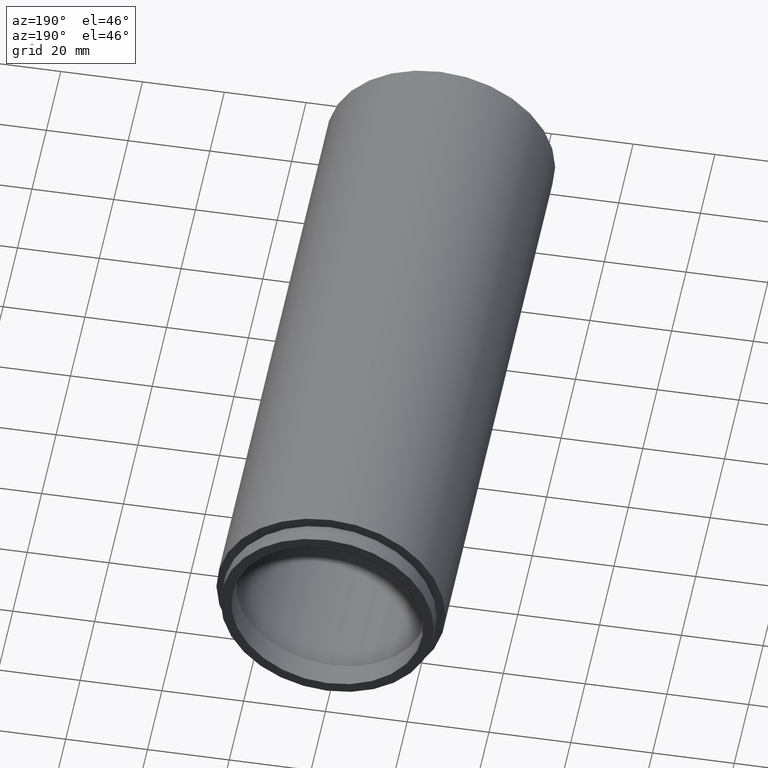
[diagram: clean part render]
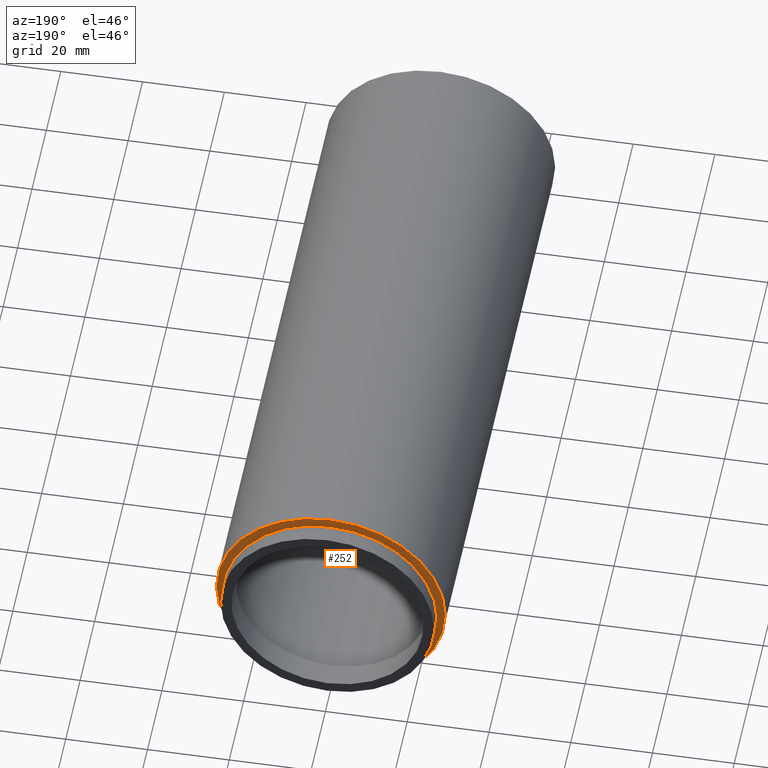
[diagram: same view with one face highlighted and labeled with its STEP entity id]
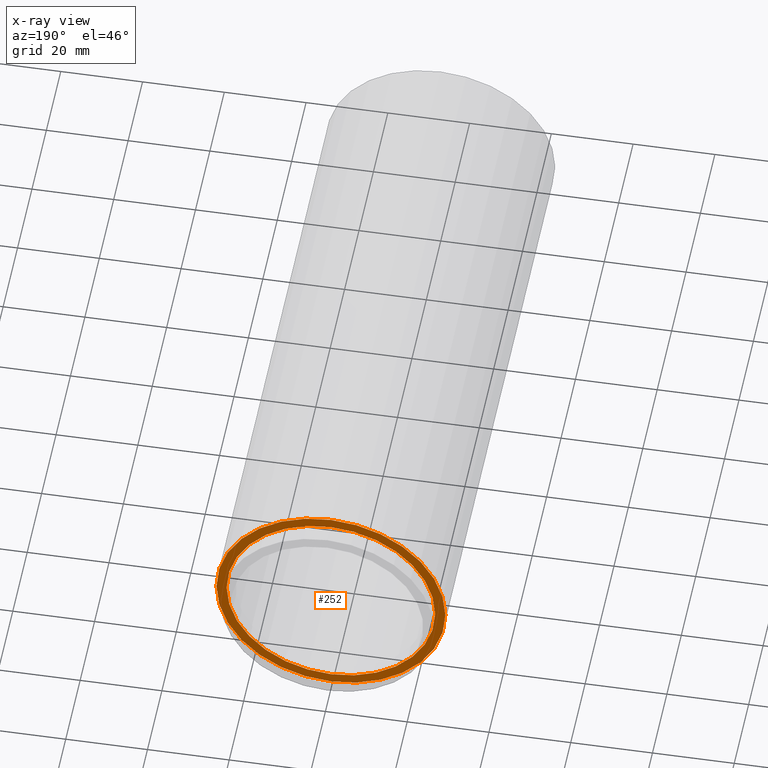
[diagram: x-ray of the same camera — body ghosted, the highlighted face saturated]
A machine part, auxiliary view. The second image highlights one B-rep face of the part: STEP entity #252.
The next image is the same camera in x-ray: the body ghosted, the highlighted face saturated — about 0% of this face is hidden behind the body in this view.
In plain terms, the highlighted planar face has unit normal (0, -1, 0).
Its self-contained STEP definition (entity closure, byte-faithful):
#3 = DIRECTION ( 'NONE',  ( 0.0000000000000000000, 0.0000000000000000000, 1.000000000000000000 ) ) ;
#9 = CIRCLE ( 'NONE', #236, 28.00000000000002100 ) ;
#19 = DIRECTION ( 'NONE',  ( 0.0000000000000000000, 0.0000000000000000000, 1.000000000000000000 ) ) ;
#30 = CARTESIAN_POINT ( 'NONE',  ( 0.0000000000000000000, 152.3999999999999800, 28.00000000000002100 ) ) ;
#39 = CARTESIAN_POINT ( 'NONE',  ( 3.429011037612591600E-015, 152.3999999999999800, -28.00000000000002100 ) ) ;
#42 = PLANE ( 'NONE',  #563 ) ;
#49 = DIRECTION ( 'NONE',  ( 0.0000000000000000000, -1.000000000000000000, 0.0000000000000000000 ) ) ;
#91 = AXIS2_PLACEMENT_3D ( 'NONE', #227, #552, #19 ) ;
#132 = DIRECTION ( 'NONE',  ( 0.0000000000000000000, 0.0000000000000000000, 1.000000000000000000 ) ) ;
#161 = CARTESIAN_POINT ( 'NONE',  ( 3.122849337825750200E-015, 152.3999999999999800, -25.50000000000000000 ) ) ;
#175 = CIRCLE ( 'NONE', #91, 25.50000000000000000 ) ;
#177 = FACE_BOUND ( 'NONE', #605, .T. ) ;
#181 = CARTESIAN_POINT ( 'NONE',  ( 0.0000000000000000000, 152.3999999999999800, 25.50000000000000000 ) ) ;
#188 = CARTESIAN_POINT ( 'NONE',  ( 28.00000000000002100, 152.3999999999999800, 0.0000000000000000000 ) ) ;
#195 = VERTEX_POINT ( 'NONE', #181 ) ;
#196 = CARTESIAN_POINT ( 'NONE',  ( 0.0000000000000000000, 152.3999999999999800, 0.0000000000000000000 ) ) ;
#200 = CIRCLE ( 'NONE', #521, 28.00000000000002100 ) ;
#203 = ORIENTED_EDGE ( 'NONE', *, *, #382, .F. ) ;
#220 = EDGE_CURVE ( 'NONE', #550, #228, #9, .T. ) ;
#227 = CARTESIAN_POINT ( 'NONE',  ( 0.0000000000000000000, 152.3999999999999800, 0.0000000000000000000 ) ) ;
#228 = VERTEX_POINT ( 'NONE', #30 ) ;
#236 = AXIS2_PLACEMENT_3D ( 'NONE', #568, #513, #132 ) ;
#247 = EDGE_CURVE ( 'NONE', #228, #550, #200, .T. ) ;
#252 = ADVANCED_FACE ( 'NONE', ( #177, #353 ), #42, .F. ) ;
#331 = DIRECTION ( 'NONE',  ( -0.0000000000000000000, 1.000000000000000000, -0.0000000000000000000 ) ) ;
#335 = VERTEX_POINT ( 'NONE', #161 ) ;
#336 = DIRECTION ( 'NONE',  ( 0.0000000000000000000, -0.0000000000000000000, -1.000000000000000000 ) ) ;
#353 = FACE_OUTER_BOUND ( 'NONE', #443, .T. ) ;
#354 = CARTESIAN_POINT ( 'NONE',  ( 0.0000000000000000000, 152.3999999999999800, 0.0000000000000000000 ) ) ;
#362 = DIRECTION ( 'NONE',  ( -0.0000000000000000000, 1.000000000000000000, -0.0000000000000000000 ) ) ;
#382 = EDGE_CURVE ( 'NONE', #195, #335, #175, .T. ) ;
#410 = EDGE_CURVE ( 'NONE', #335, #195, #492, .T. ) ;
#417 = ORIENTED_EDGE ( 'NONE', *, *, #410, .F. ) ;
#443 = EDGE_LOOP ( 'NONE', ( #543, #549 ) ) ;
#492 = CIRCLE ( 'NONE', #620, 25.50000000000000000 ) ;
#511 = DIRECTION ( 'NONE',  ( 0.0000000000000000000, 0.0000000000000000000, 1.000000000000000000 ) ) ;
#513 = DIRECTION ( 'NONE',  ( -0.0000000000000000000, 1.000000000000000000, -0.0000000000000000000 ) ) ;
#521 = AXIS2_PLACEMENT_3D ( 'NONE', #196, #331, #3 ) ;
#543 = ORIENTED_EDGE ( 'NONE', *, *, #247, .T. ) ;
#549 = ORIENTED_EDGE ( 'NONE', *, *, #220, .T. ) ;
#550 = VERTEX_POINT ( 'NONE', #39 ) ;
#552 = DIRECTION ( 'NONE',  ( -0.0000000000000000000, 1.000000000000000000, -0.0000000000000000000 ) ) ;
#563 = AXIS2_PLACEMENT_3D ( 'NONE', #188, #49, #336 ) ;
#568 = CARTESIAN_POINT ( 'NONE',  ( 0.0000000000000000000, 152.3999999999999800, 0.0000000000000000000 ) ) ;
#605 = EDGE_LOOP ( 'NONE', ( #203, #417 ) ) ;
#620 = AXIS2_PLACEMENT_3D ( 'NONE', #354, #362, #511 ) ;